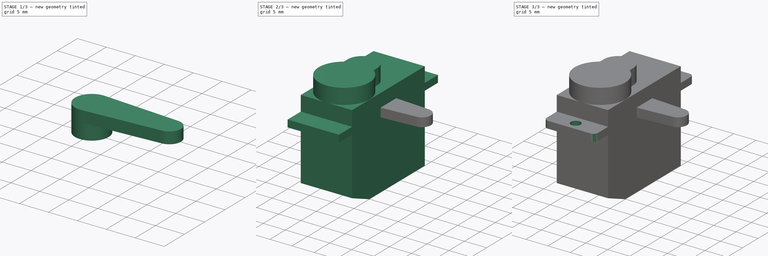
[diagram: build sequence overview — one tinted view per stage of 3, left to right]
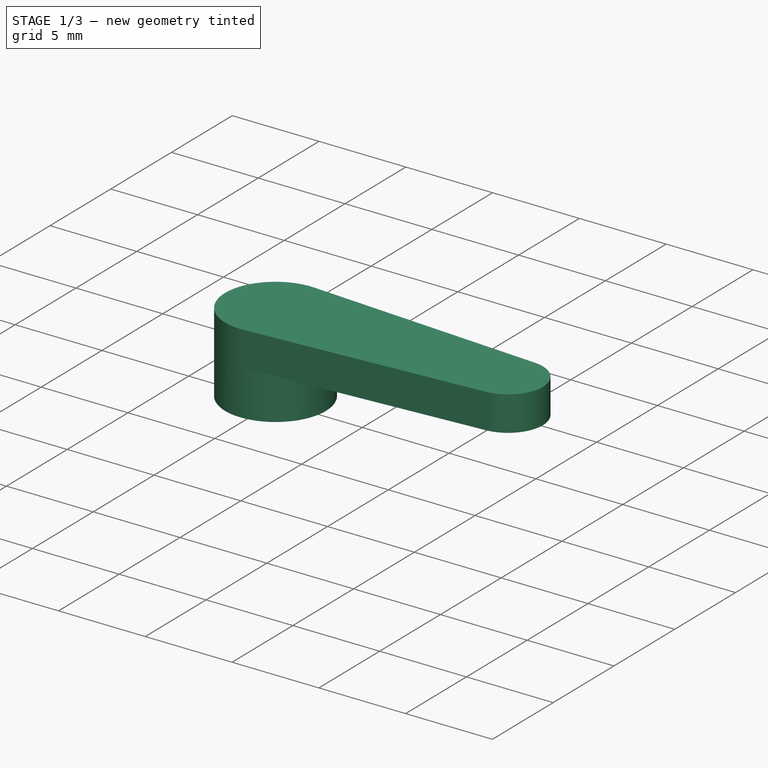
[diagram: stage 1 of 3 — iso view after this stage's code; geometry added in this stage tinted green]
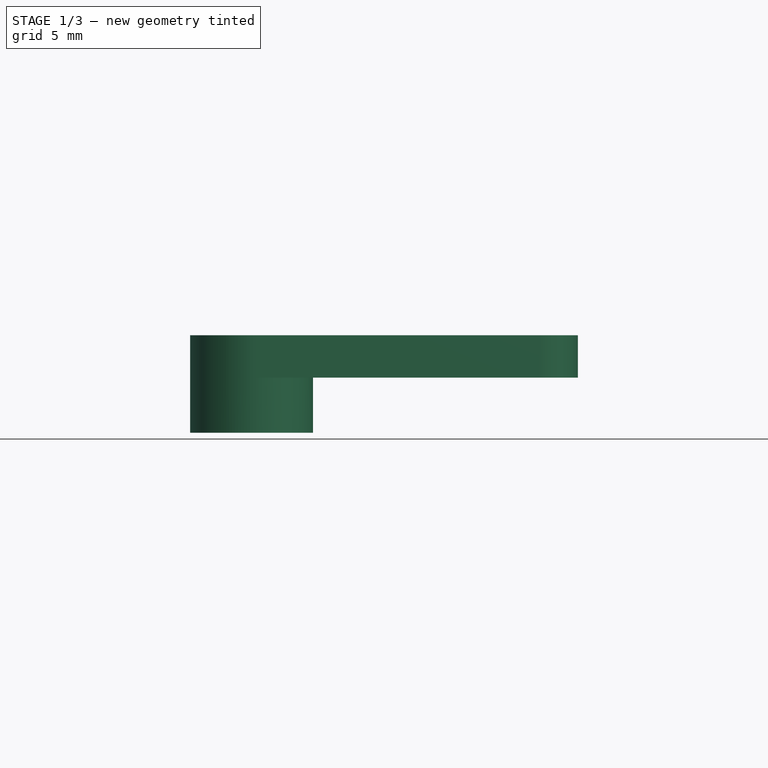
[diagram: stage 1 of 3 — front view after this stage's code; geometry added in this stage tinted green]
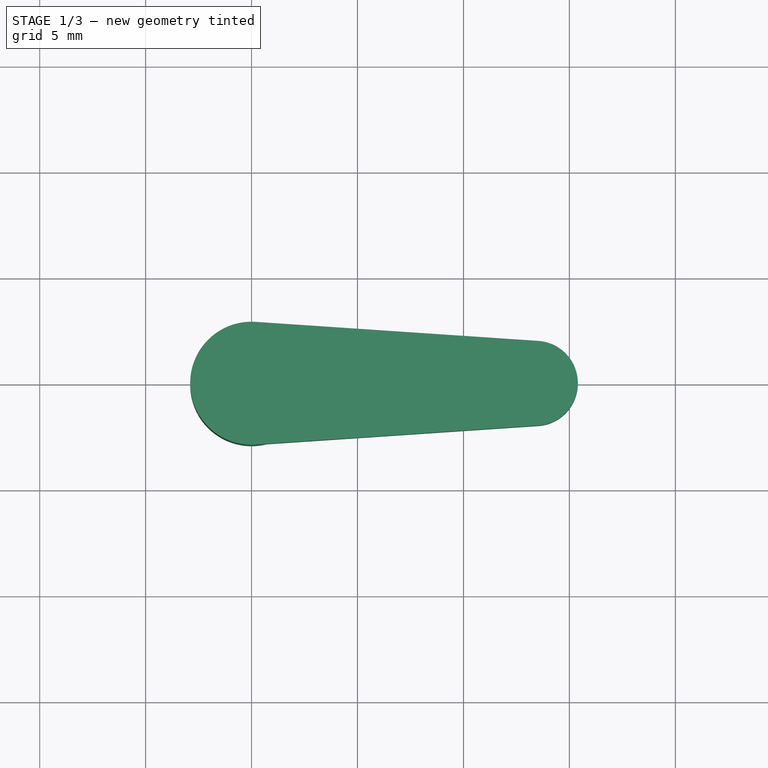
[diagram: stage 1 of 3 — top view after this stage's code; geometry added in this stage tinted green]
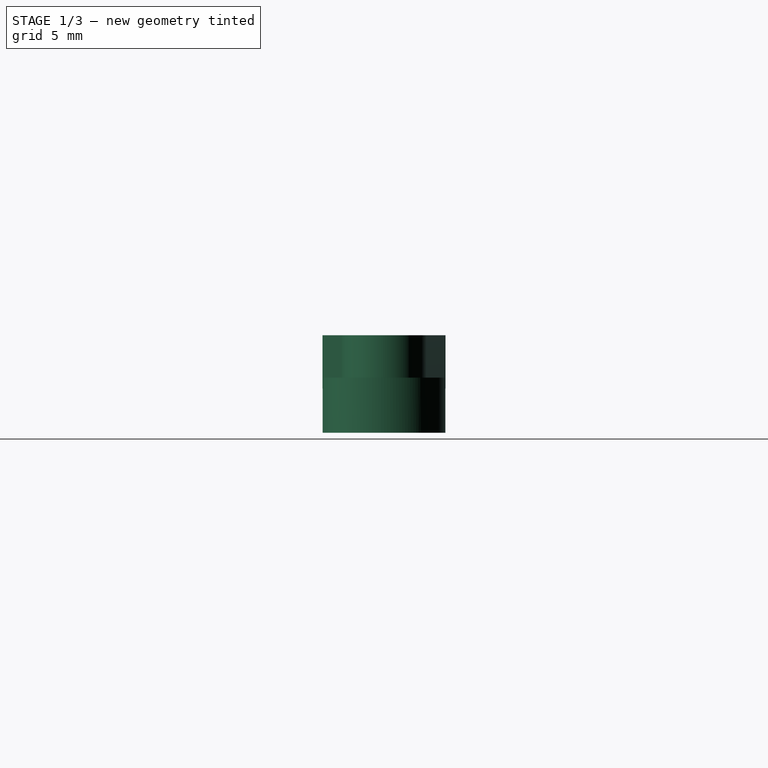
[diagram: stage 1 of 3 — right view after this stage's code; geometry added in this stage tinted green]
FCSTD DOCUMENT  (FreeCAD 0.19R24276 (Git))
Label: Grove_Servo
License: All rights reserved
LicenseURL: http://en.wikipedia.org/wiki/All_rights_reserved
objects: Sketcher::SketchObject×5, PartDesign::Pad×4, PartDesign::Body×2, PartDesign::Plane×1, PartDesign::Pocket×1, PartDesign::Fillet×1, App::Part×1
note: 20 computed .brp shape members not serialized (recipe doc carries the construction recipe); baked Part::Feature solids carry a one-line shape summary decoded from their .brp

FEATURE [PartDesign::Body] Body  label="Servo_Body"
  Group = -> [Sketch,Pad,DatumPlane,Sketch001,Pad001,Sketch002,Pocket,Fillet]
  Origin = -> Origin001
  Tip = -> Fillet
FEATURE [Sketcher::SketchObject] Sketch003
  FullyConstrained = true
  MapMode = 5
  Support = -> [XY_Plane002]
  sketch-geometry (6):
    g0: ArcOfCircle CenterX=0 CenterY=0 CenterZ=0 NormalX=0 NormalY=0 NormalZ=1 AngleXU=0 Radius=2.9 StartAngle=1.50358 EndAngle=4.7796
    g1: ArcOfCircle CenterX=13.4 CenterY=0 CenterZ=0 NormalX=0 NormalY=0 NormalZ=1 AngleXU=0 Radius=2 StartAngle=4.7796 EndAngle=7.78677
    g2: LineSegment StartX=0.194784 StartY=2.89345 StartZ=0 EndX=13.5343 EndY=1.99548 EndZ=0
    g3: LineSegment StartX=0.194775 StartY=-2.89345 StartZ=0 EndX=13.5343 EndY=-1.99548 EndZ=0
    g4: GeomPoint X=-2.9 Y=0 Z=0
    g5: GeomPoint X=15.4 Y=0 Z=0
  constraints (17):
    c: Coincident(g0,g-1)
    c: PointOnObject(g1,g-1)
    c: Coincident(g2,g0)
    c: Coincident(g2,g1)
    c: Coincident(g3,g0)
    c: Coincident(g3,g1)
    c: Tangent(g2,g0)
    c: Tangent(g0,g3)
    c: Tangent(g3,g1)
    c: Tangent(g2,g1)
    c: Diameter(g1) = 4
    c: Diameter(g0) = 5.8
    c: PointOnObject(g4,g-1)
    c: PointOnObject(g4,g0)
    c: PointOnObject(g5,g-1)
    c: PointOnObject(g5,g1)
    c: DistanceX(g4,g5) = 18.3
FEATURE [PartDesign::Pad] Pad002
  Direction = (1,1,1)
  Length = 2
  Length2 = 100
  Profile = -> Sketch003
  Type = 0
FEATURE [Sketcher::SketchObject] Sketch004
  FullyConstrained = true
  MapMode = 5
  Support = -> [XY_Plane002]
  sketch-geometry (1):
    g0: Circle CenterX=0 CenterY=0 CenterZ=0 NormalX=0 NormalY=0 NormalZ=1 AngleXU=0 Radius=2.9
  constraints (2):
    c: Coincident(g0,g-1)
    c: Diameter(g0) = 5.8
FEATURE [PartDesign::Pad] Pad003
  BaseFeature = -> Pad002
  Direction = (1,1,1)
  Length = 2.6
  Length2 = 100
  Profile = -> Sketch004
  Reversed = true
  Type = 0
FEATURE [PartDesign::Body] Body001  label="Servo_Arm"
  Group = -> [Sketch003,Pad002,Sketch004,Pad003]
  Origin = -> Origin002
  Placement = pos=(0,-7,11) rot=(0,0,-1;1.5708rad)
  Tip = -> Pad003
FEATURE [App::Part] Part  label="Grove_Servo"
  Group = -> [Body,Body001]
  Origin = -> Origin
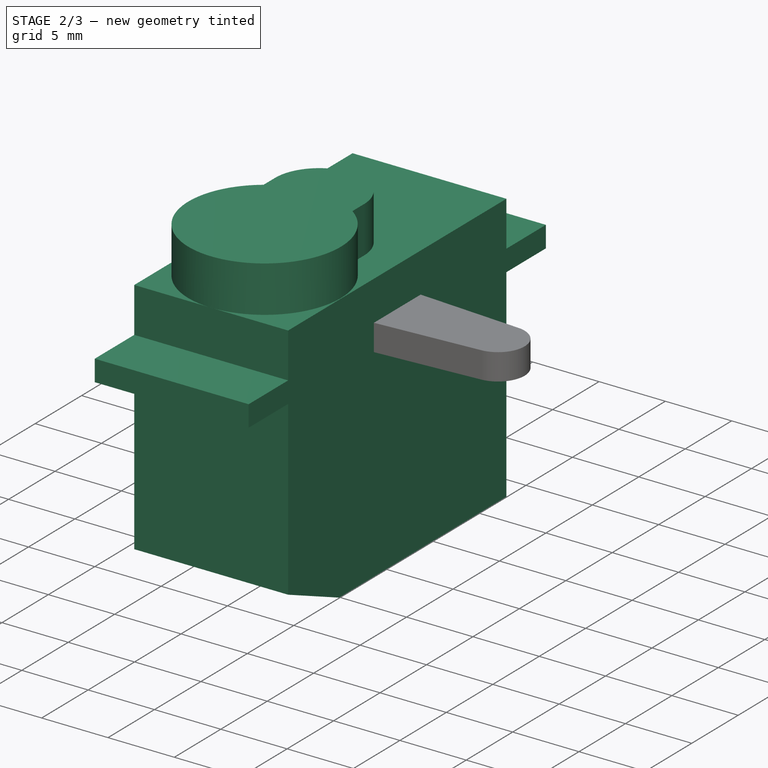
[diagram: stage 2 of 3 — iso view after this stage's code; geometry added in this stage tinted green]
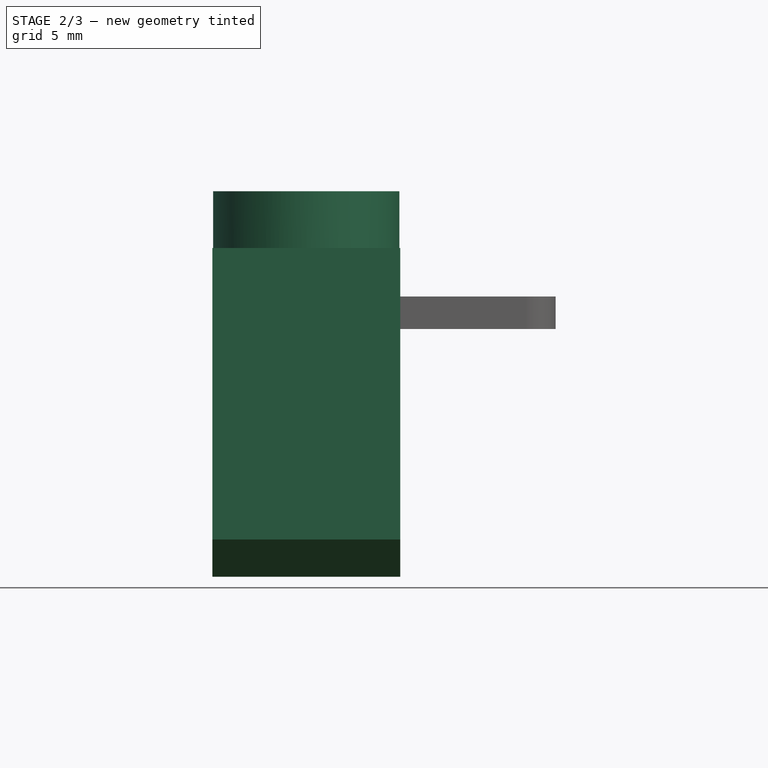
[diagram: stage 2 of 3 — front view after this stage's code; geometry added in this stage tinted green]
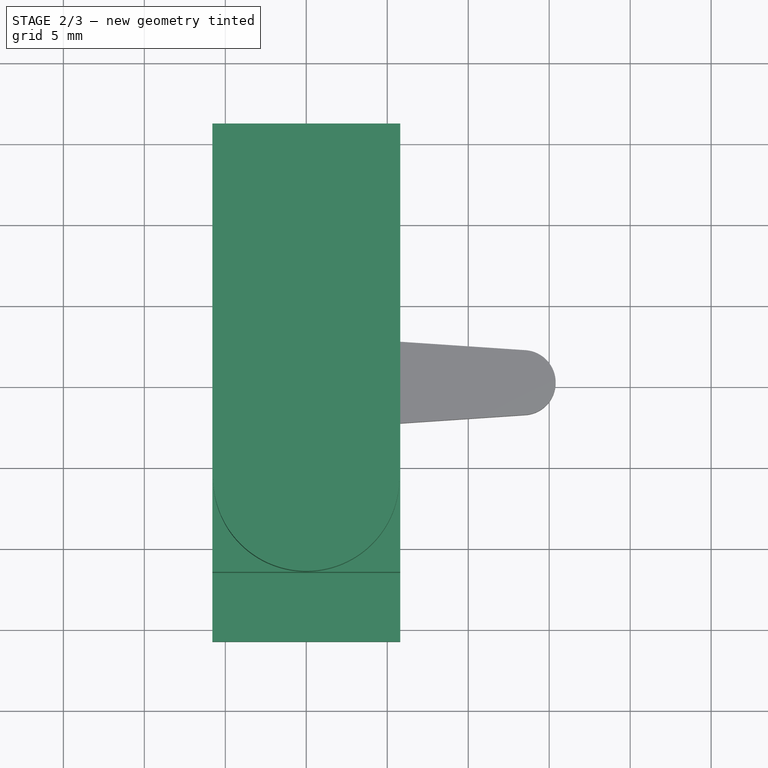
[diagram: stage 2 of 3 — top view after this stage's code; geometry added in this stage tinted green]
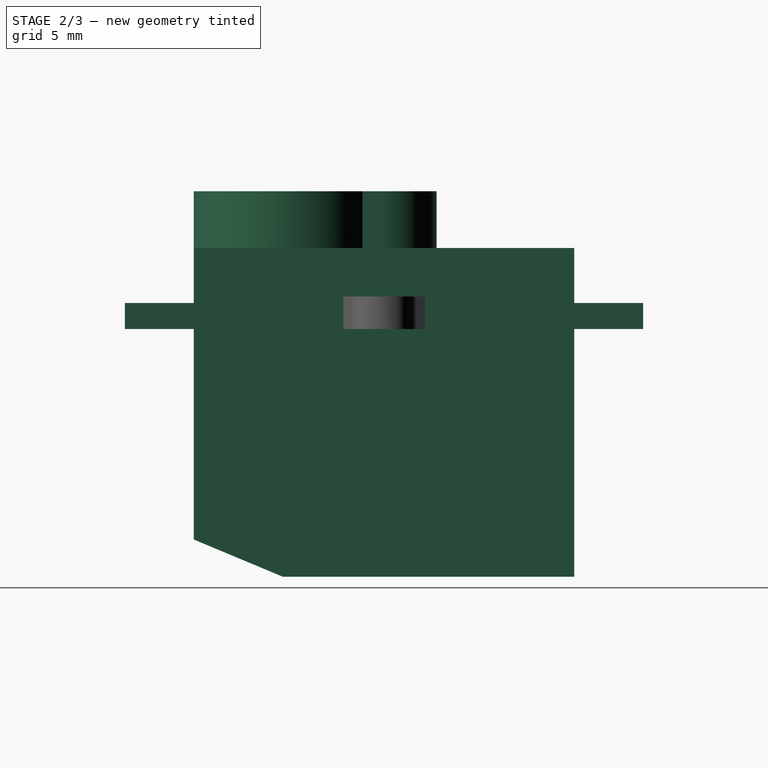
[diagram: stage 2 of 3 — right view after this stage's code; geometry added in this stage tinted green]
FEATURE [Sketcher::SketchObject] Sketch
  FullyConstrained = true
  MapMode = 5
  Placement = pos=(0,0,0) rot=(0.57735,0.57735,0.57735;2.0944rad)
  Support = -> [YZ_Plane001]
  sketch-geometry (17):
    g0: LineSegment StartX=-16 StartY=0 StartZ=0 EndX=-16 EndY=1.6 EndZ=0
    g1: LineSegment StartX=-16 StartY=1.6 StartZ=0 EndX=-11.75 EndY=1.6 EndZ=0
    g2: LineSegment StartX=-11.75 StartY=1.6 StartZ=0 EndX=-11.75 EndY=5 EndZ=0
    g3: LineSegment StartX=-11.75 StartY=5 StartZ=0 EndX=11.75 EndY=5 EndZ=0
    g4: LineSegment StartX=11.75 StartY=5 StartZ=0 EndX=11.75 EndY=1.6 EndZ=0
    g5: LineSegment StartX=11.75 StartY=1.6 StartZ=0 EndX=16 EndY=1.6 EndZ=0
    g6: LineSegment StartX=16 StartY=1.6 StartZ=0 EndX=16 EndY=0 EndZ=0
    g7: LineSegment StartX=-16 StartY=0 StartZ=0 EndX=-11.75 EndY=0 EndZ=0
    g8: LineSegment StartX=-11.75 StartY=1.6 StartZ=0 EndX=11.75 EndY=1.6 EndZ=0
    g9: LineSegment StartX=-11.75 StartY=0 StartZ=0 EndX=-11.75 EndY=-13 EndZ=0
    g10: LineSegment StartX=-11.75 StartY=-13 StartZ=0 EndX=-6.25 EndY=-15.3 EndZ=0
    g11: LineSegment StartX=-6.25 StartY=-15.3 StartZ=0 EndX=11.75 EndY=-15.3 EndZ=0
    g12: LineSegment StartX=16 StartY=0 StartZ=0 EndX=11.75 EndY=0 EndZ=0
    g13: LineSegment StartX=11.75 StartY=-15.3 StartZ=0 EndX=11.75 EndY=0 EndZ=0
    g14: LineSegment StartX=-11.75 StartY=0 StartZ=0 EndX=-11.75 EndY=1.6 EndZ=0
    g15: LineSegment StartX=11.75 StartY=0 StartZ=0 EndX=11.75 EndY=1.6 EndZ=0
    g16: LineSegment StartX=0 StartY=0 StartZ=0 EndX=0 EndY=5 EndZ=0
  constraints (47):
    c: PointOnObject(g0,g-1)
    c: Vertical(g0)
    c: Coincident(g1,g0)
    c: Horizontal(g1)
    c: Coincident(g2,g1)
    c: Vertical(g2)
    c: Coincident(g3,g2)
    c: Horizontal(g3)
    c: Coincident(g4,g3)
    c: Vertical(g4)
    c: Coincident(g5,g4)
    c: Horizontal(g5)
    c: Coincident(g6,g5)
    c: PointOnObject(g6,g-1)
    c: Vertical(g6)
    c: Coincident(g7,g0)
    c: PointOnObject(g7,g-1)
    c: Coincident(g8,g1)
    c: Coincident(g8,g4)
    c: Horizontal(g8)
    c: Coincident(g9,g7)
    c: Vertical(g9)
    c: Coincident(g10,g9)
    c: Coincident(g11,g10)
    c: Horizontal(g11)
    c: Coincident(g12,g6)
    c: PointOnObject(g12,g-1)
    c: Coincident(g13,g11)
    c: Coincident(g13,g12)
    c: Vertical(g13)
    c: Coincident(g14,g7)
    c: Coincident(g14,g1)
    c: Coincident(g15,g12)
    c: Coincident(g15,g4)
    c: Vertical(g14)
    c: Vertical(g15)
    c: Coincident(g16,g-1)
    c: PointOnObject(g16,g-2)
    c: Symmetric(g2,g3,g16)
    c: Equal(g1,g5)
    c: DistanceX(g0,g5) = 32
    c: DistanceY(g11,g3) = 20.3
    c: DistanceY(g6,g5) = 1.6
    c: DistanceY(g12,g3) = 5
    c: DistanceX(g2,g3) = 23.5
    c: DistanceY(g9,g2) = 18
    c: DistanceX(g10,g11) = 18
FEATURE [PartDesign::Pad] Pad  label="Body_MainPad"
  Direction = (1,1,1)
  Length = 11.6
  Length2 = 100
  Midplane = true
  Placement = pos=(0,0,0) rot=(0.57735,0.57735,0.57735;2.0944rad)
  Profile = -> Sketch
  Type = 0
FEATURE [PartDesign::Plane] DatumPlane  label="DatumTop"
  AttachmentOffset = pos=(0,0,5) rot=(0,0,1;0rad)
  Length = 60
  MapMode = 5
  Placement = pos=(0,0,5) rot=(0,0,1;0rad)
  ResizeMode = 0
  Support = -> [XY_Plane001]
  Width = 60
FEATURE [Sketcher::SketchObject] Sketch001
  FullyConstrained = true
  MapMode = 5
  Placement = pos=(0,0,5) rot=(0,0,1;0rad)
  Support = -> [DatumPlane]
  sketch-geometry (6):
    g0: GeomPoint X=0 Y=-11.75 Z=0
    g1: LineSegment StartX=-3.35 StartY=-1.32667 StartZ=0 EndX=-3.35 EndY=-0.0999999 EndZ=0
    g2: LineSegment StartX=3.35 StartY=-1.32667 StartZ=0 EndX=3.35 EndY=-0.1 EndZ=0
    g3: ArcOfCircle CenterX=0 CenterY=-0.1 CenterZ=0 NormalX=0 NormalY=0 NormalZ=1 AngleXU=0 Radius=3.35 StartAngle=6.28319 EndAngle=9.42478
    g4: GeomPoint X=0 Y=3.25 Z=0
    g5: ArcOfCircle CenterX=0 CenterY=-6 CenterZ=0 NormalX=0 NormalY=0 NormalZ=1 AngleXU=0 Radius=5.75 StartAngle=2.19273 EndAngle=7.23205
  constraints (18):
    c: PointOnObject(g0,g-2)
    c: DistanceY(g0,g-1) = 11.75
    c: Vertical(g1)
    c: Vertical(g2)
    c: PointOnObject(g3,g-2)
    c: Coincident(g3,g1)
    c: Coincident(g3,g2)
    c: Tangent(g2,g3)
    c: Tangent(g1,g3)
    c: DistanceX(g1,g2) = 6.7
    c: PointOnObject(g4,g-2)
    c: PointOnObject(g4,g3)
    c: DistanceY(g0,g4) = 15
    c: Coincident(g5,g1)
    c: Coincident(g5,g2)
    c: PointOnObject(g0,g5)
    c: Diameter(g5) = 11.5
    c: PointOnObject(g5,g-2)
FEATURE [PartDesign::Pad] Pad001  label="GearRound"
  BaseFeature = -> Pad
  Direction = (1,1,1)
  Length = 3.5
  Length2 = 100
  Placement = pos=(0,0,0) rot=(0.57735,0.57735,0.57735;2.0944rad)
  Profile = -> Sketch001
  Type = 0
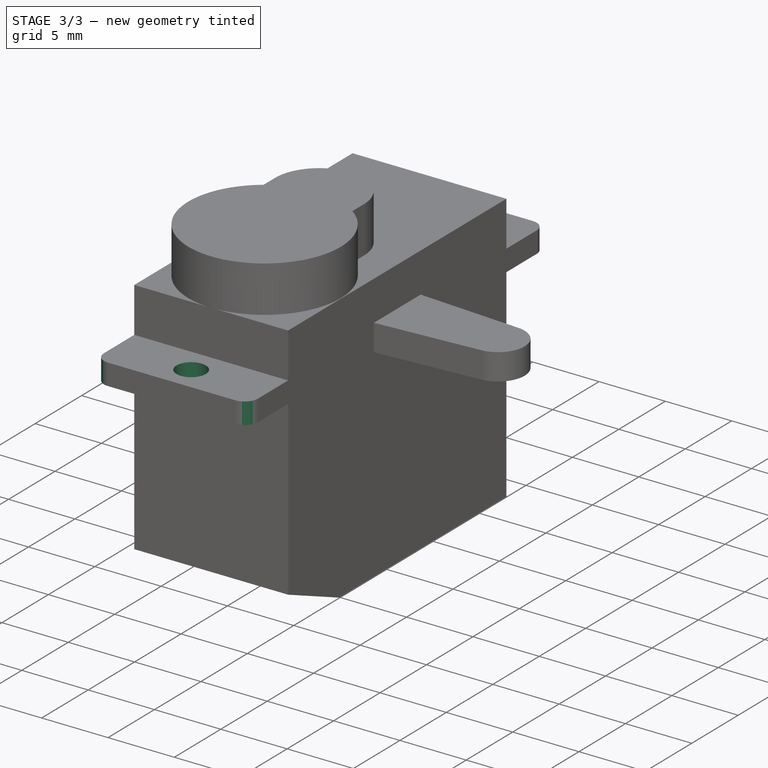
[diagram: stage 3 of 3 — iso view after this stage's code; geometry added in this stage tinted green]
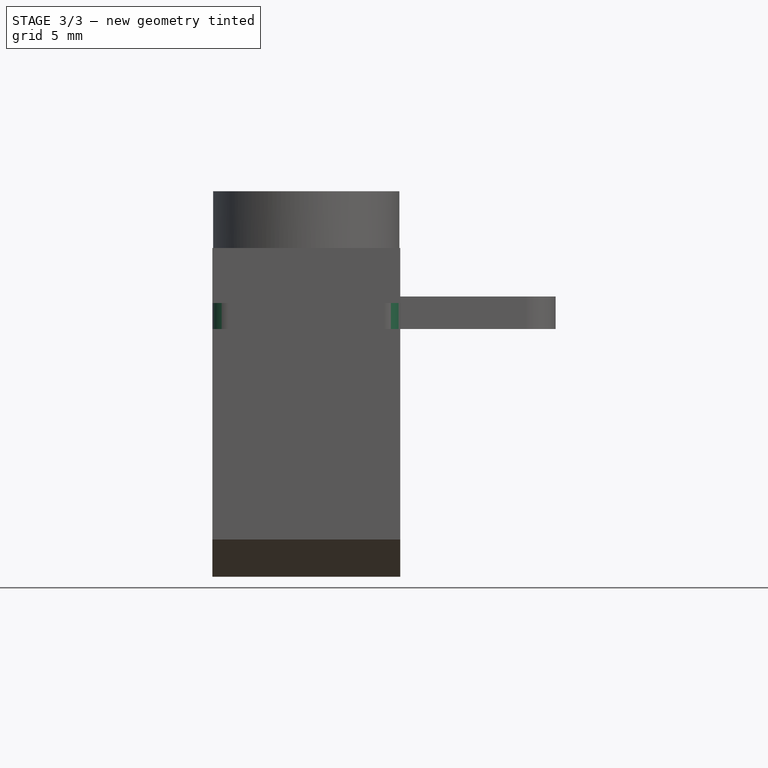
[diagram: stage 3 of 3 — front view after this stage's code; geometry added in this stage tinted green]
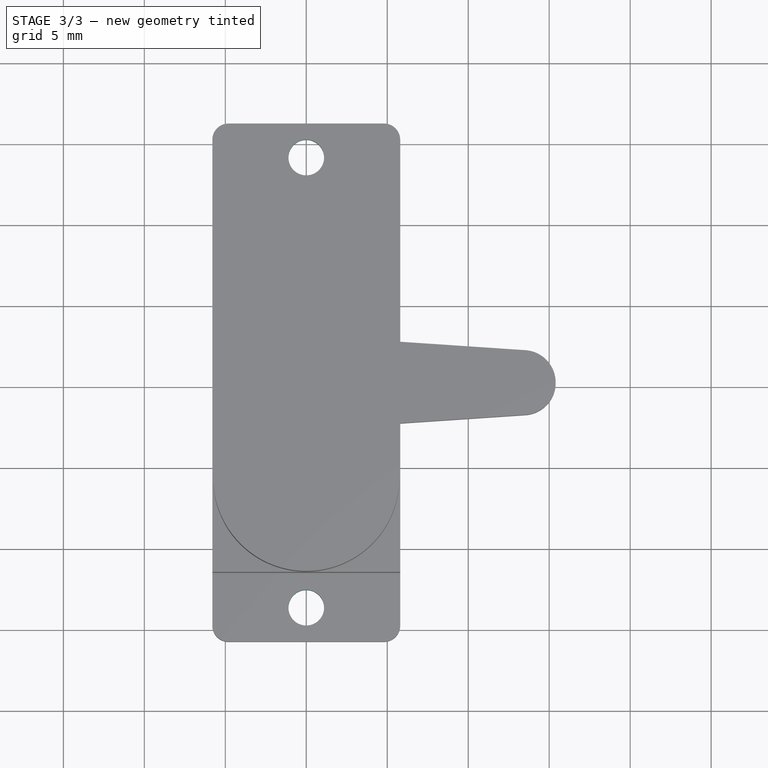
[diagram: stage 3 of 3 — top view after this stage's code; geometry added in this stage tinted green]
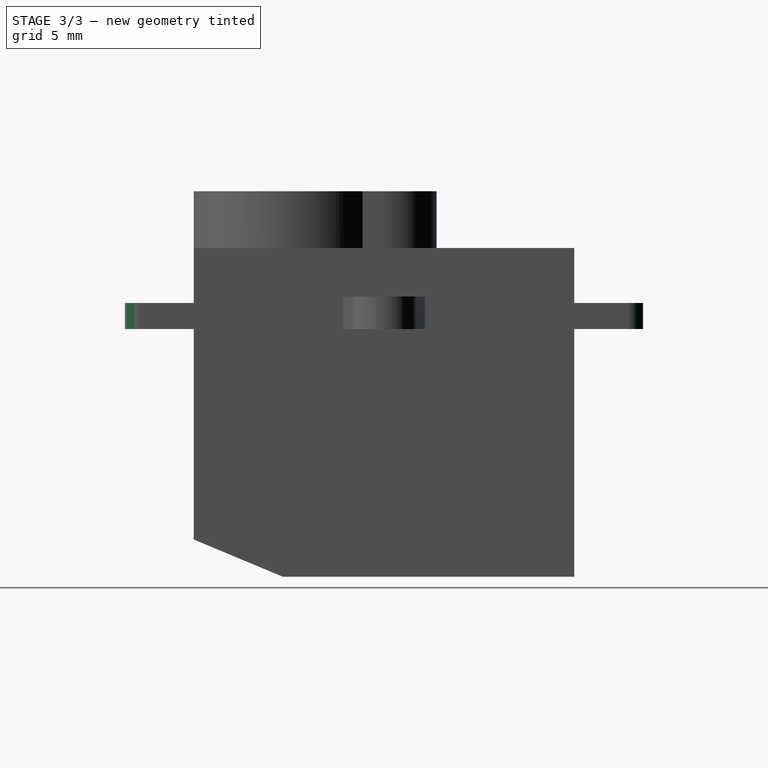
[diagram: stage 3 of 3 — right view after this stage's code; geometry added in this stage tinted green]
FEATURE [Sketcher::SketchObject] Sketch002
  FullyConstrained = true
  MapMode = 5
  Support = -> [XY_Plane001]
  sketch-geometry (4):
    g0: Circle CenterX=0 CenterY=13.9 CenterZ=0 NormalX=0 NormalY=0 NormalZ=1 AngleXU=0 Radius=1.1
    g1: Circle CenterX=0 CenterY=-13.9 CenterZ=0 NormalX=0 NormalY=0 NormalZ=1 AngleXU=0 Radius=1.1
    g2: GeomPoint X=0 Y=12.8 Z=0
    g3: GeomPoint X=0 Y=-12.8 Z=0
  constraints (9):
    c: PointOnObject(g0,g-2)
    c: Symmetric(g0,g1,g-1)
    c: Equal(g0,g1)
    c: Diameter(g0) = 2.2
    c: PointOnObject(g2,g-2)
    c: PointOnObject(g3,g-2)
    c: PointOnObject(g2,g0)
    c: PointOnObject(g3,g1)
    c: DistanceY(g1,g0) = 27.8
FEATURE [PartDesign::Pocket] Pocket
  BaseFeature = -> Pad001
  Length = 5
  Length2 = 100
  Midplane = true
  Placement = pos=(0,0,0) rot=(0.57735,0.57735,0.57735;2.0944rad)
  Profile = -> Sketch002
  Type = 0
FEATURE [PartDesign::Fillet] Fillet
  Base = -> Pocket [Edge27,Edge17,Edge4,Edge3]
  BaseFeature = -> Pocket
  Placement = pos=(0,0,0) rot=(0.57735,0.57735,0.57735;2.0944rad)
  Radius = 1
  SupportTransform = false
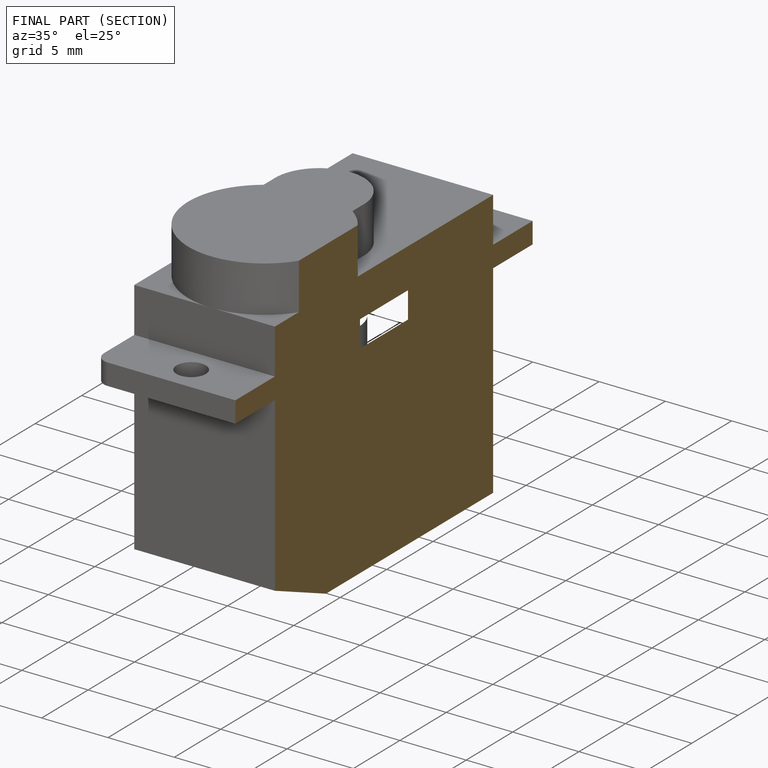
[diagram: finished part — half-section view (interior)]
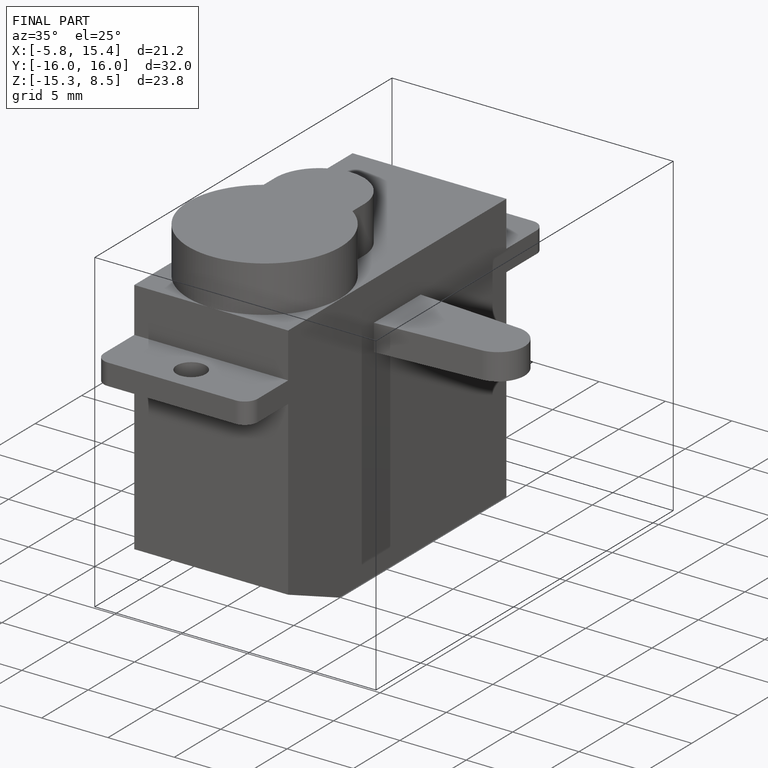
[diagram: finished part — iso view with bounding-box wireframe]
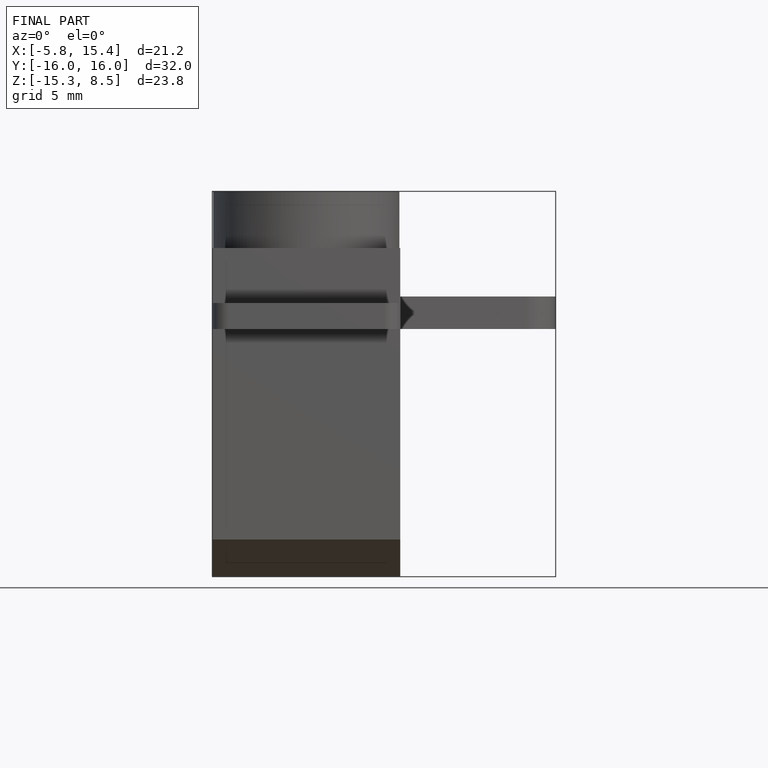
[diagram: finished part — front view with bounding-box wireframe]
